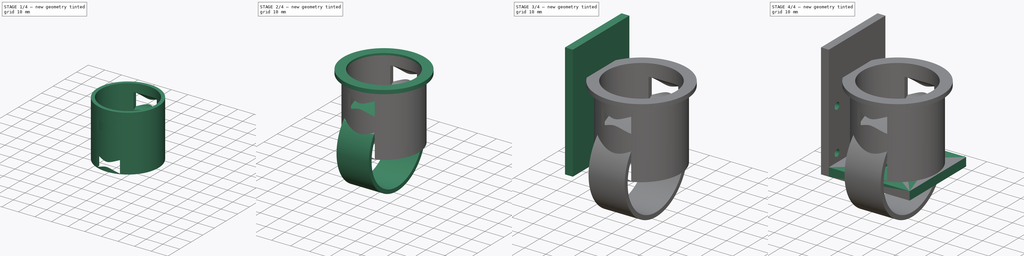
[diagram: build sequence overview — one tinted view per stage of 4, left to right]
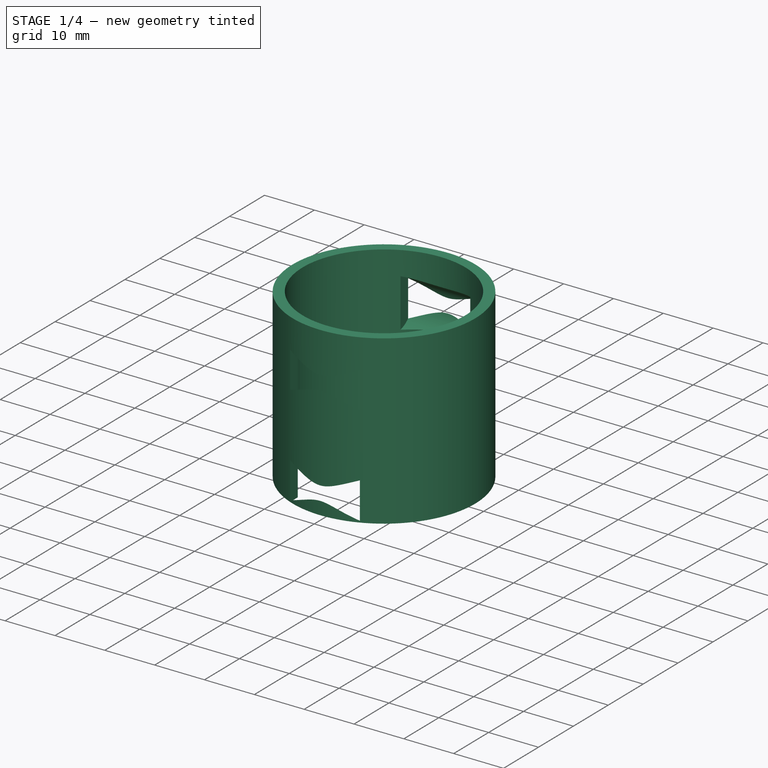
[diagram: stage 1 of 4 — iso view after this stage's code; geometry added in this stage tinted green]
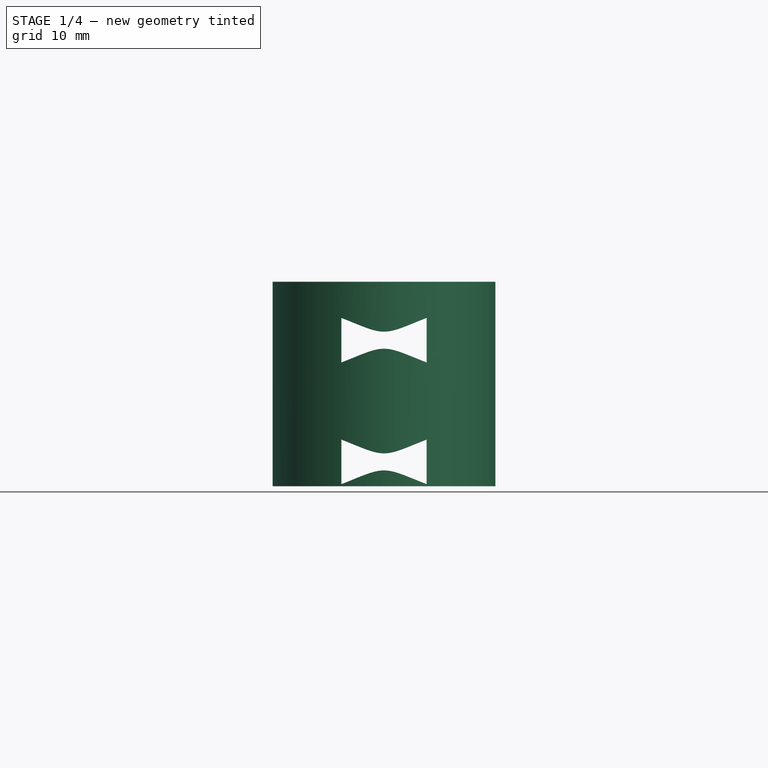
[diagram: stage 1 of 4 — front view after this stage's code; geometry added in this stage tinted green]
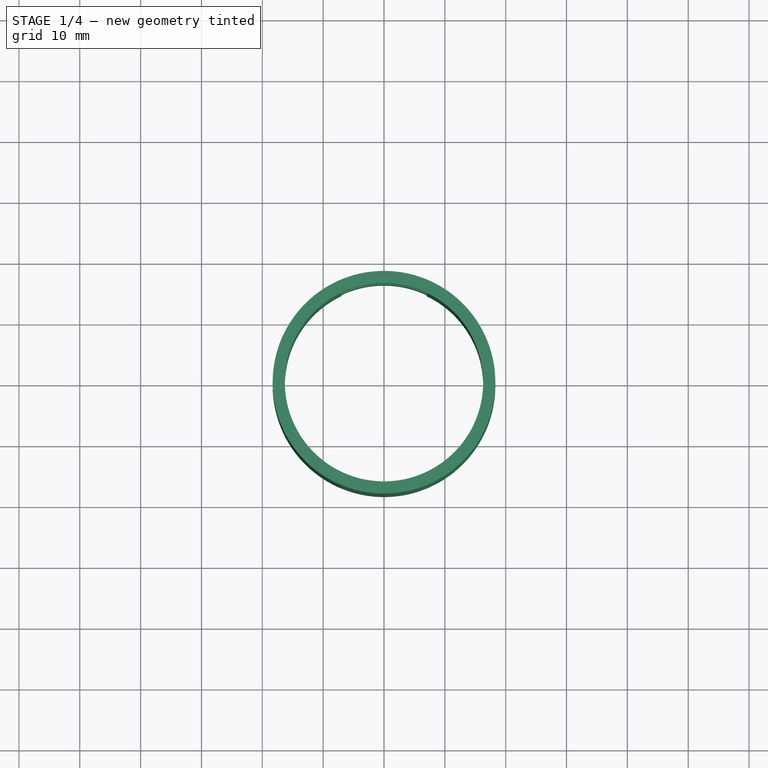
[diagram: stage 1 of 4 — top view after this stage's code; geometry added in this stage tinted green]
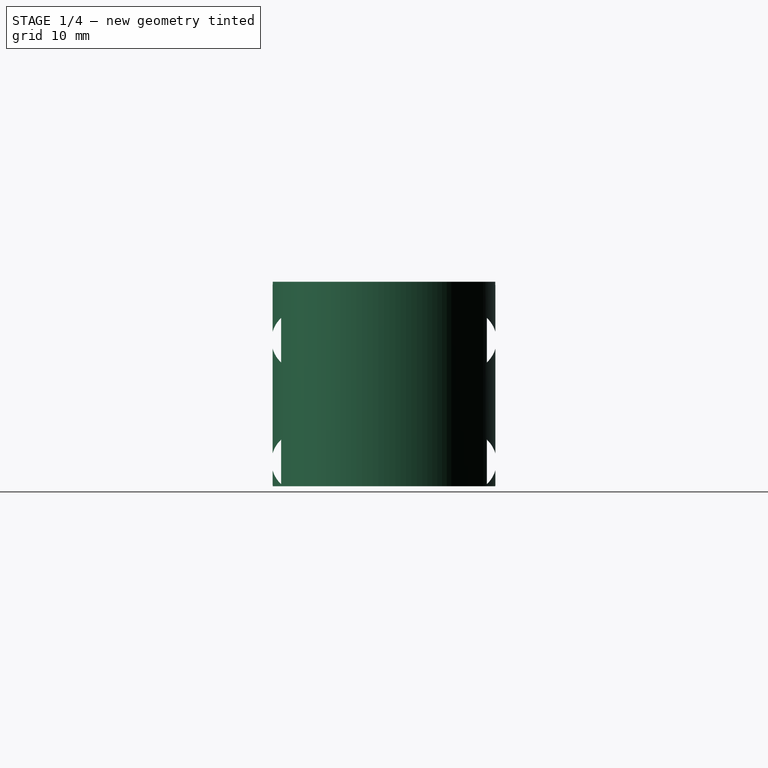
[diagram: stage 1 of 4 — right view after this stage's code; geometry added in this stage tinted green]
FCSTD DOCUMENT  (FreeCAD 0.18.4R)
Label: SoporteAngularMotor
License: All rights reserved
LicenseURL: http://en.wikipedia.org/wiki/All_rights_reserved
objects: Sketcher::SketchObject×7, PartDesign::Pad×6, PartDesign::Body×3, App::MeasureDistance×3, PartDesign::Pocket×2, PartDesign::FeatureBase×1, App::Part×1
note: 27 computed .brp shape members not serialized (recipe doc carries the construction recipe); baked Part::Feature solids carry a one-line shape summary decoded from their .brp

FEATURE [Sketcher::SketchObject] Sketch001  label="Sketch_Separador"
  MapMode = 5
  Support = -> [XY_Plane004]
  sketch-geometry (4):
    g0: LineSegment StartX=-22.7 StartY=19 StartZ=0 EndX=-19 EndY=19 EndZ=0
    g1: LineSegment StartX=-19 StartY=19 StartZ=0 EndX=-19 EndY=-19 EndZ=0
    g2: LineSegment StartX=-19 StartY=-19 StartZ=0 EndX=-22.7 EndY=-19 EndZ=0
    g3: LineSegment StartX=-22.7 StartY=-19 StartZ=0 EndX=-22.7 EndY=19 EndZ=0
  constraints (9):
    c: Coincident(g0,g1)
    c: Coincident(g1,g2)
    c: Coincident(g2,g3)
    c: Coincident(g3,g0)
    c: Horizontal(g0)
    c: Horizontal(g2)
    c: Vertical(g1)
    c: Vertical(g3)
    c: DistanceX(g2,g1) = 3.7
FEATURE [Sketcher::SketchObject] Sketch002  label="Sketch_CilindroReduccion"
  MapMode = 5
  Support = -> [XY_Plane002]
  sketch-geometry (2):
    g0: Circle CenterX=0 CenterY=0 CenterZ=0 NormalX=0 NormalY=0 NormalZ=1 AngleXU=0 Radius=16.3
    g1: Circle CenterX=0 CenterY=0 CenterZ=0 NormalX=0 NormalY=0 NormalZ=1 AngleXU=0 Radius=18.3
  constraints (4):
    c: Coincident(g0,g-1)
    c: Radius(g0) = 16.3
    c: Coincident(g1,g0)
    c: Radius(g1) = 18.3
FEATURE [PartDesign::Pad] Pad002  label="Extrusion_CilindroReduccion"
  Length = 33.6
  Length2 = 100
  Profile = -> Sketch002
  Type = 0
FEATURE [Sketcher::SketchObject] Sketch003  label="Sketch_BarrenosCilindro"
  MapMode = 5
  Placement = pos=(0,0,0) rot=(0.57735,0.57735,0.57735;2.0944rad)
  Support = -> [YZ_Plane]
  sketch-geometry (9):
    g0: LineSegment [constr] StartX=-13.5 StartY=4 StartZ=0 EndX=13.5 EndY=4 EndZ=0
    g1: Circle CenterX=13.5 CenterY=4 CenterZ=0 NormalX=0 NormalY=0 NormalZ=1 AngleXU=0 Radius=5
    g2: Circle CenterX=-13.5 CenterY=4 CenterZ=0 NormalX=0 NormalY=0 NormalZ=1 AngleXU=0 Radius=5
    g3: LineSegment [constr] StartX=-13.5 StartY=4 StartZ=0 EndX=13.5 EndY=4 EndZ=0
    g4: LineSegment [constr] StartX=13.5 StartY=4 StartZ=0 EndX=13.5 EndY=24 EndZ=0
    g5: LineSegment [constr] StartX=13.5 StartY=24 StartZ=0 EndX=-13.5 EndY=24 EndZ=0
    g6: LineSegment [constr] StartX=-13.5 StartY=24 StartZ=0 EndX=-13.5 EndY=4 EndZ=0
    g7: Circle CenterX=13.5 CenterY=24 CenterZ=0 NormalX=0 NormalY=0 NormalZ=1 AngleXU=0 Radius=5
    g8: Circle CenterX=-13.5 CenterY=24 CenterZ=0 NormalX=0 NormalY=0 NormalZ=1 AngleXU=0 Radius=5
  constraints (22):
    c: Horizontal(g0)
    c: DistanceX(g0,g0) = 27
    c: DistanceX(g-1,g0) = 13.5
    c: Coincident(g1,g0)
    c: Coincident(g2,g0)
    c: Radius(g1) = 5
    c: Equal(g1,g2)
    c: Coincident(g3,g4)
    c: Coincident(g4,g5)
    c: Coincident(g5,g6)
    c: Coincident(g6,g3)
    c: Horizontal(g5)
    c: Vertical(g4)
    c: Vertical(g6)
    c: Coincident(g3,g2)
    c: Coincident(g3,g1)
    c: DistanceY(g4,g4) = 20
    c: Coincident(g7,g4)
    c: Coincident(g8,g5)
    c: Equal(g8,g7)
    c: DistanceY(g-1,g1) = 4
    c: Equal(g7,g1)
FEATURE [PartDesign::Pocket] Pocket
  BaseFeature = -> Pad002
  Length = 14
  Length2 = 100
  Midplane = true
  Profile = -> Sketch003
  Type = 0
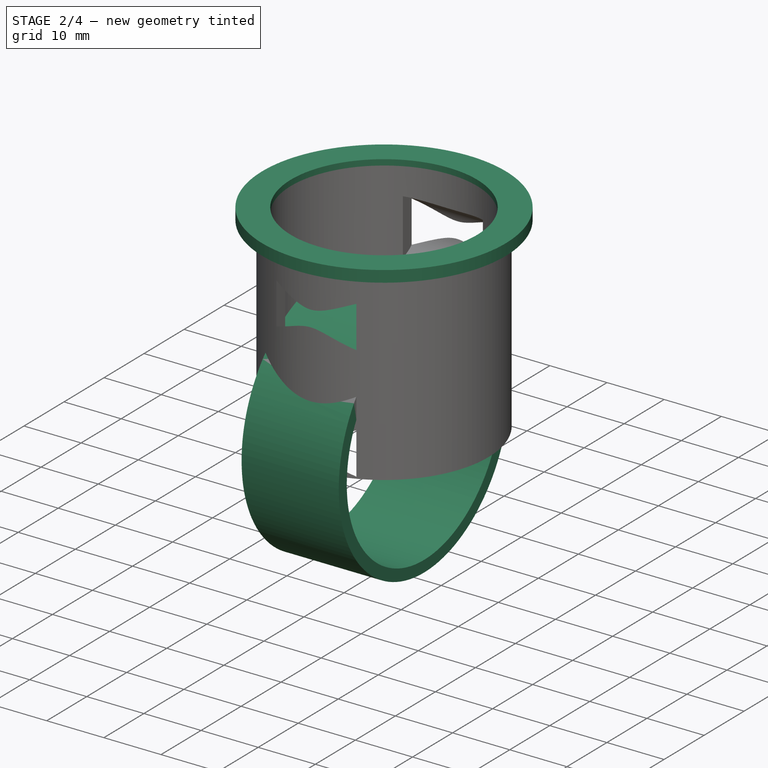
[diagram: stage 2 of 4 — iso view after this stage's code; geometry added in this stage tinted green]
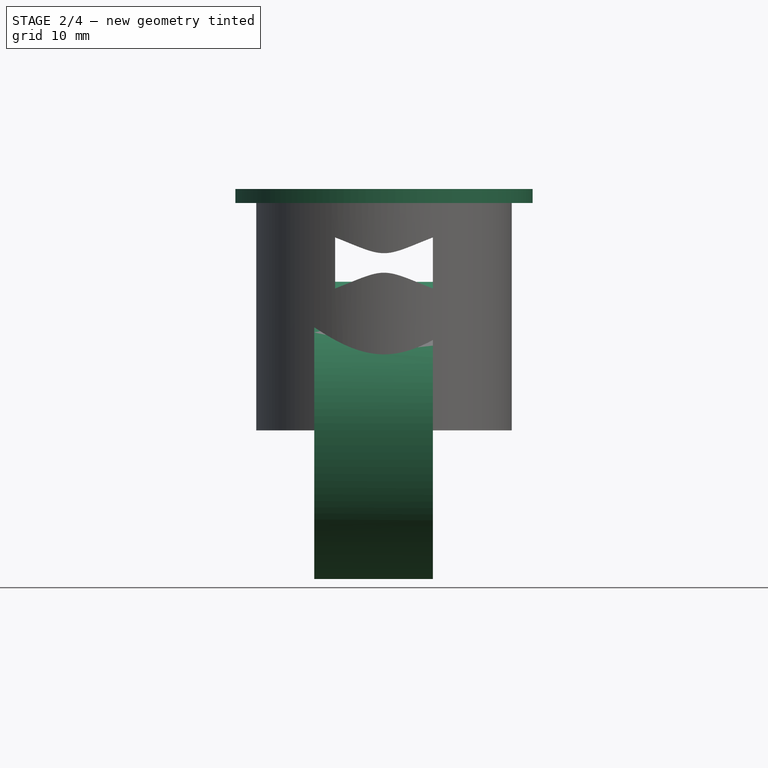
[diagram: stage 2 of 4 — front view after this stage's code; geometry added in this stage tinted green]
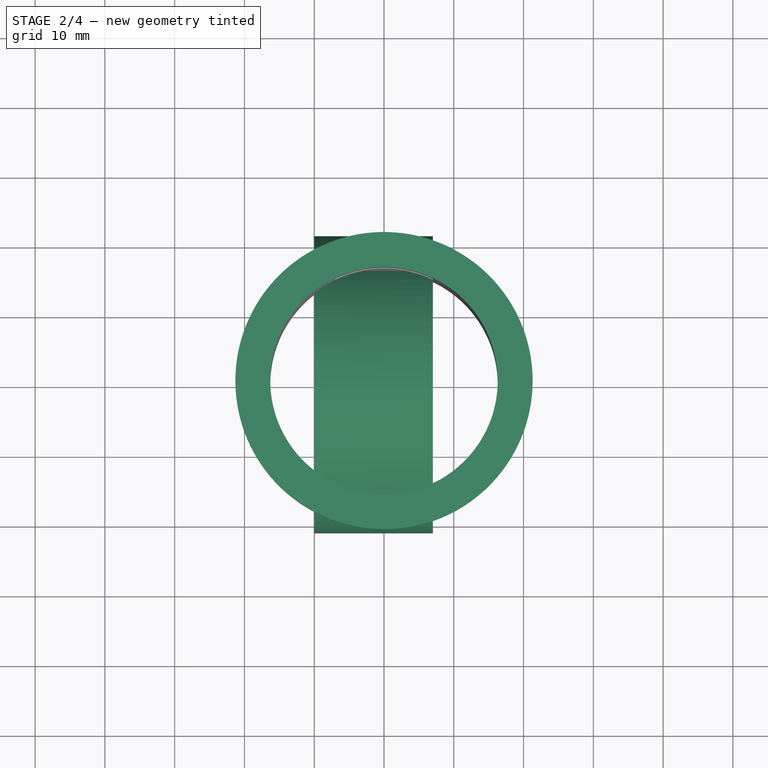
[diagram: stage 2 of 4 — top view after this stage's code; geometry added in this stage tinted green]
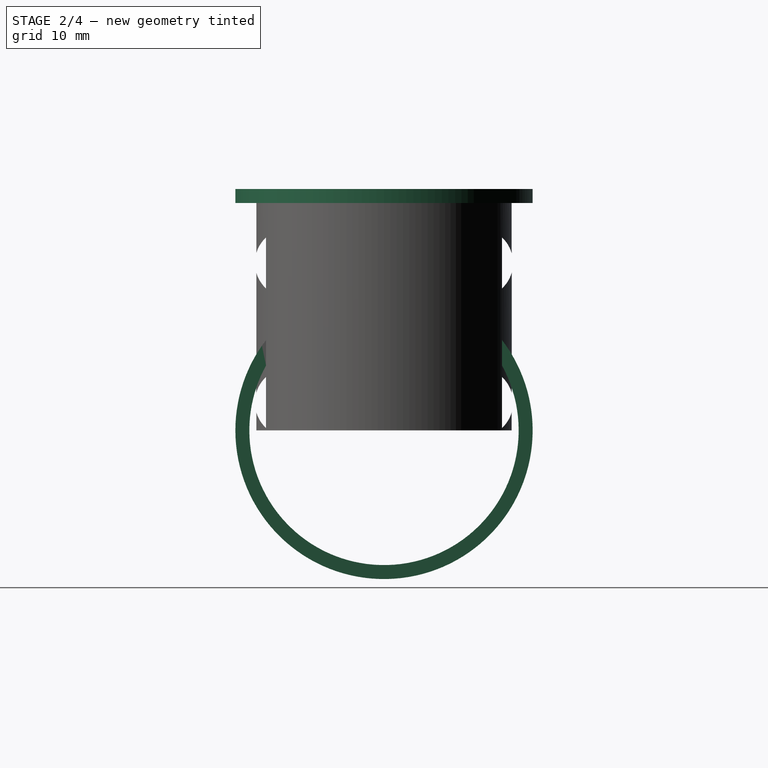
[diagram: stage 2 of 4 — right view after this stage's code; geometry added in this stage tinted green]
FEATURE [Sketcher::SketchObject] Sketch005  label="Sketch1_CilindroMotor"
  ExternalGeometry = -> [Pocket]
  MapMode = 5
  Placement = pos=(0,0,33.6) rot=(0,0,1;0rad)
  Support = -> [Pocket]
  sketch-geometry (3):
    g0: Circle CenterX=0 CenterY=0 CenterZ=0 NormalX=0 NormalY=0 NormalZ=1 AngleXU=0 Radius=16.3
    g1: Circle [constr] CenterX=0 CenterY=0 CenterZ=0 NormalX=0 NormalY=0 NormalZ=1 AngleXU=0 Radius=19.3
    g2: Circle CenterX=0 CenterY=0 CenterZ=0 NormalX=0 NormalY=0 NormalZ=1 AngleXU=0 Radius=21.3
  constraints (6):
    c: Coincident(g1,g0)
    c: Radius(g1) = 19.3
    c: Coincident(g2,g0)
    c: Radius(g2) = 21.3
    c: Equal(g-3,g0)
    c: Coincident(g0,g-1)
FEATURE [PartDesign::Pad] Pad003  label="CilindroMotor_Extrusion1"
  BaseFeature = -> Pocket
  Length = 2
  Length2 = 100
  Midplane = true
  Profile = -> Sketch005
  Type = 0
FEATURE [PartDesign::Body] Body002  label="Separador"
  Group = -> [BaseFeature,Pad001,Sketch001,Sketch004,Pad005,Pocket002]
  Origin = -> Origin004
  Tip = -> Pocket002
FEATURE [App::MeasureDistance] Distance001  label="Distance: 4.00 mm"
  Distance = 4
  P1 = (19,19,-4)
  P2 = (19,19,0)
FEATURE [App::MeasureDistance] Distance  label="Distance: 30.00 mm"
  Distance = 30.0011
  P1 = (-19.2527,-19,30)
  P2 = (-19,-19,0)
FEATURE [Sketcher::SketchObject] Sketch006  label="Sketch2_CilindroMotor"
  ExternalGeometry = -> [Pad003]
  MapMode = 5
  Placement = pos=(7,-1.6e-15,1.6e-15) rot=(-0.57735,0.57735,0.57735;4.18879rad)
  Support = -> [Pad003]
  sketch-geometry (2):
    g0: Circle CenterX=0 CenterY=0 CenterZ=0 NormalX=0 NormalY=0 NormalZ=1 AngleXU=0 Radius=19.3
    g1: Circle CenterX=0 CenterY=0 CenterZ=0 NormalX=0 NormalY=0 NormalZ=1 AngleXU=0 Radius=21.3
  constraints (3):
    c: Coincident(g0,g-1)
    c: Coincident(g1,g0)
    c: Radius(g0) = 19.3
FEATURE [PartDesign::Pad] Pad006  label="CilindroMotor_Extrusion2"
  BaseFeature = -> Pad003
  Length = 17
  Length2 = 100
  Profile = -> Sketch006
  Type = 0
FEATURE [PartDesign::Body] Body001  label="CilindroReduccion"
  Group = -> [Sketch002,Pad002,Sketch003,Pocket,Sketch005,Pad003,Sketch006,Pad006]
  Origin = -> Origin002
  Tip = -> Pad006
FEATURE [App::Part] Part  label="SoporteAngularMotor_v2"
  Group = -> [Body001,Body,Body002]
  Origin = -> Origin
FEATURE [App::MeasureDistance] Distance002  label="Distance: 4.48 mm"
  Distance = 4.47664
  P1 = (6.5705,-9.99032,-4)
  P2 = (9.09288,-6.29195,-4)
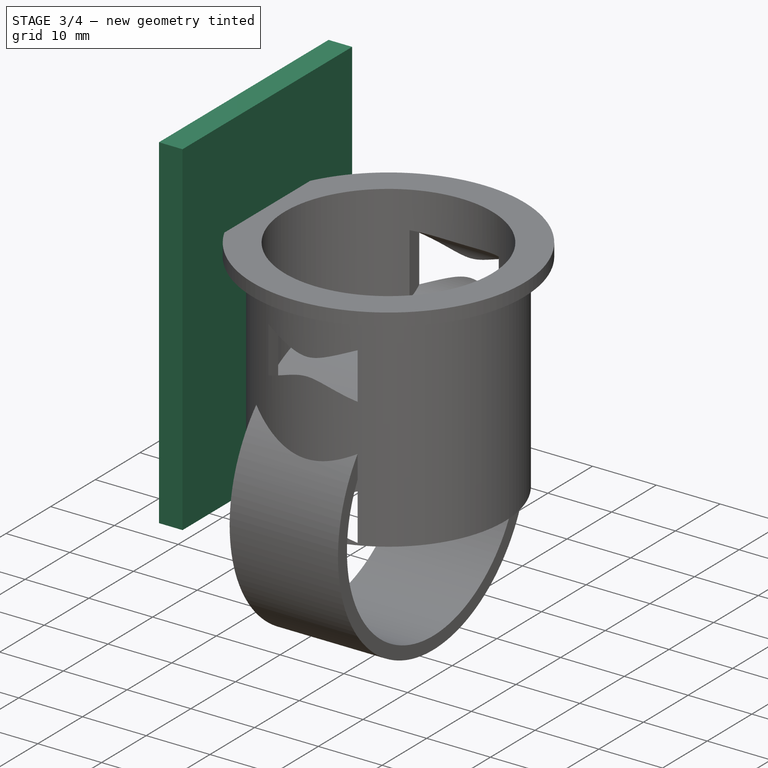
[diagram: stage 3 of 4 — iso view after this stage's code; geometry added in this stage tinted green]
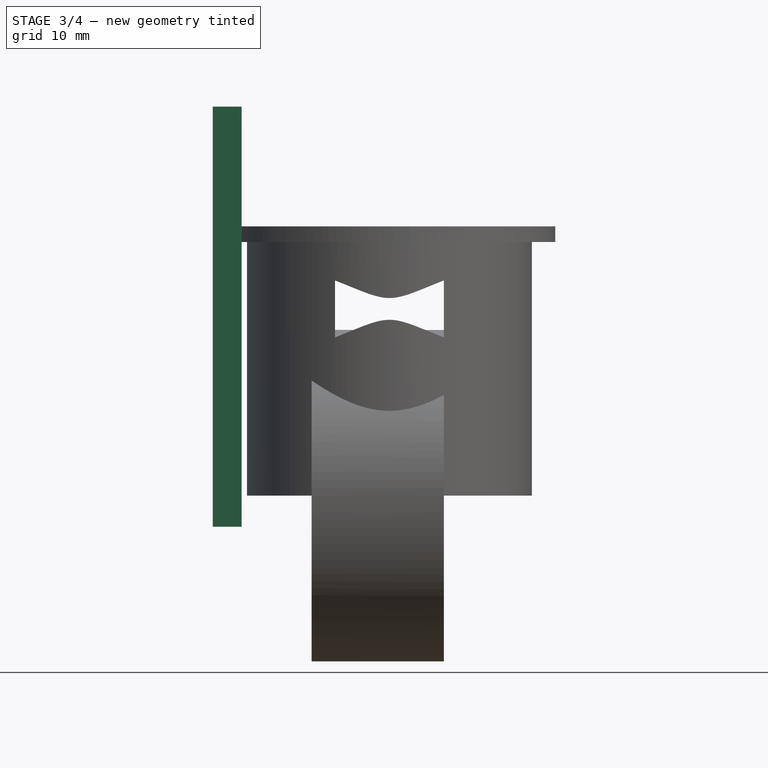
[diagram: stage 3 of 4 — front view after this stage's code; geometry added in this stage tinted green]
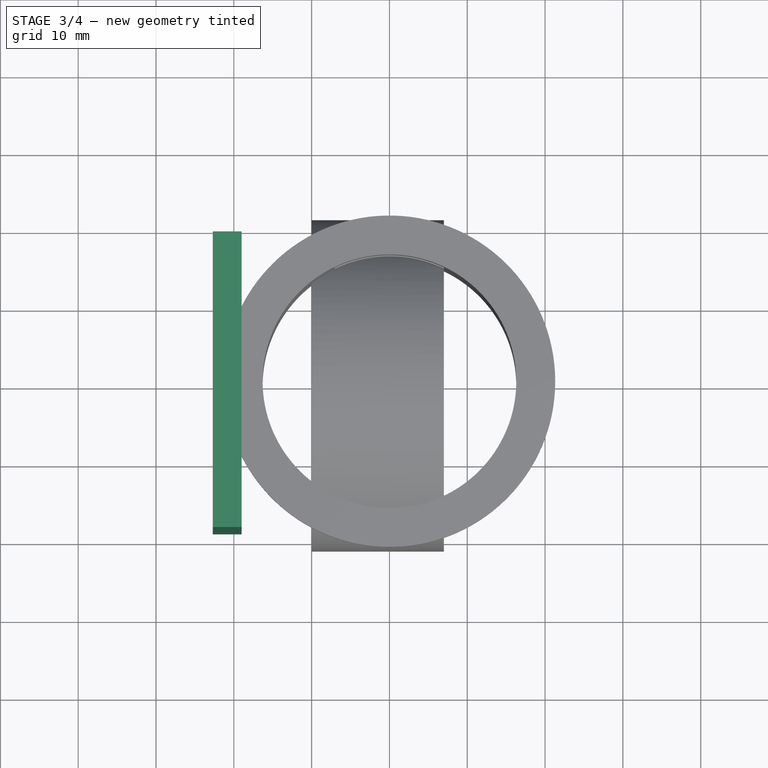
[diagram: stage 3 of 4 — top view after this stage's code; geometry added in this stage tinted green]
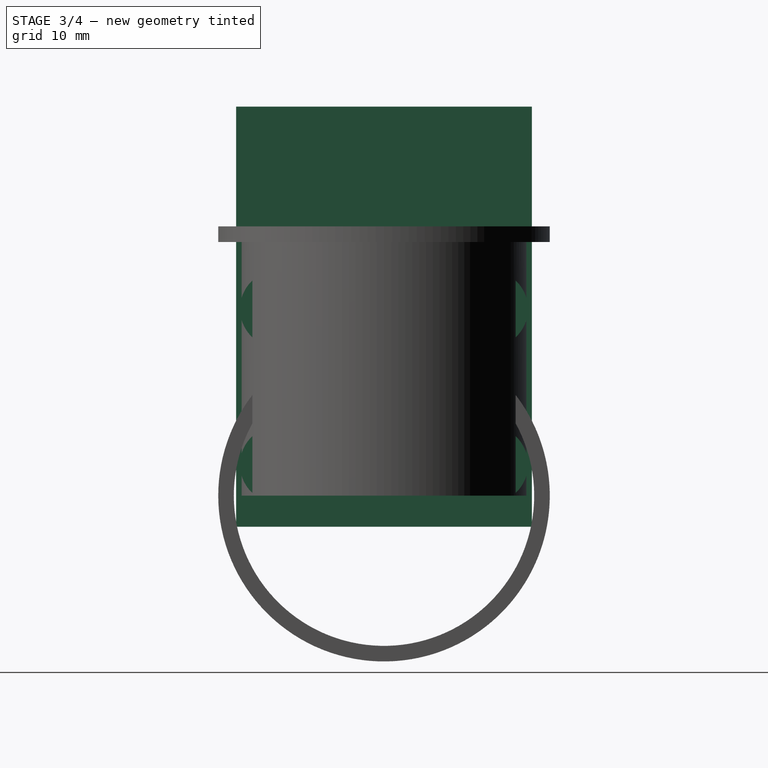
[diagram: stage 3 of 4 — right view after this stage's code; geometry added in this stage tinted green]
FEATURE [PartDesign::Body] Body  label="CaraTornillos"
  Group = -> [Pad,Sketch]
  Origin = -> Origin003
  Tip = -> Pad
FEATURE [PartDesign::FeatureBase] BaseFeature
FEATURE [PartDesign::Pad] Pad001  label="Extrusion_Separador_1"
  BaseFeature = -> BaseFeature
  Length = 50
  Length2 = 100
  Profile = -> Sketch001
  Type = 0
FEATURE [Sketcher::SketchObject] Sketch004  label="Sketch_Separador_Barrenos"
  MapMode = 5
  Placement = pos=(-19,0,0) rot=(0.57735,0.57735,0.57735;2.0944rad)
  Support = -> [Pad001]
  sketch-geometry (9):
    g0: LineSegment [constr] StartX=-13.5 StartY=4 StartZ=0 EndX=13.5 EndY=4 EndZ=0
    g1: Circle CenterX=13.5 CenterY=4 CenterZ=0 NormalX=0 NormalY=0 NormalZ=1 AngleXU=0 Radius=1.6
    g2: Circle CenterX=-13.5 CenterY=4 CenterZ=0 NormalX=0 NormalY=0 NormalZ=1 AngleXU=0 Radius=1.6
    g3: LineSegment [constr] StartX=-13.5 StartY=4 StartZ=0 EndX=13.5 EndY=4 EndZ=0
    g4: LineSegment [constr] StartX=13.5 StartY=4 StartZ=0 EndX=13.5 EndY=24 EndZ=0
    g5: LineSegment [constr] StartX=13.5 StartY=24 StartZ=0 EndX=-13.5 EndY=24 EndZ=0
    g6: LineSegment [constr] StartX=-13.5 StartY=24 StartZ=0 EndX=-13.5 EndY=4 EndZ=0
    g7: Circle CenterX=-13.5 CenterY=24 CenterZ=0 NormalX=0 NormalY=0 NormalZ=1 AngleXU=0 Radius=1.6
    g8: Circle CenterX=13.5 CenterY=24 CenterZ=0 NormalX=0 NormalY=0 NormalZ=1 AngleXU=0 Radius=1.6
  constraints (22):
    c: Horizontal(g0)
    c: DistanceX(g0,g0) = 27
    c: DistanceX(g-1,g0) = 13.5
    c: DistanceY(g-1,g0) = 4
    c: Coincident(g1,g0)
    c: Coincident(g2,g0)
    c: Radius(g1) = 1.6
    c: Equal(g1,g2)
    c: Coincident(g3,g4)
    c: Coincident(g4,g5)
    c: Coincident(g5,g6)
    c: Coincident(g6,g3)
    c: Horizontal(g5)
    c: Vertical(g4)
    c: Vertical(g6)
    c: Coincident(g3,g2)
    c: Coincident(g3,g1)
    c: DistanceY(g4,g4) = 20
    c: Coincident(g7,g5)
    c: Coincident(g8,g4)
    c: Equal(g8,g7)
    c: Equal(g7,g1)
FEATURE [PartDesign::Pad] Pad005  label="ExtrusionSeparador_2"
  BaseFeature = -> Pad001
  Length = 4
  Length2 = 100
  Profile = -> Sketch001
  Reversed = true
  Type = 0
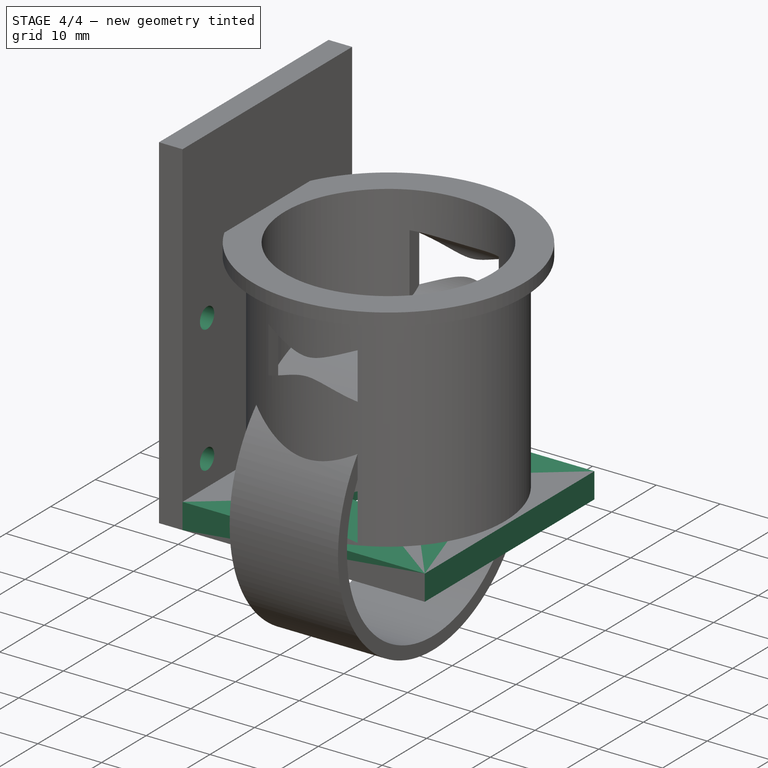
[diagram: stage 4 of 4 — iso view after this stage's code; geometry added in this stage tinted green]
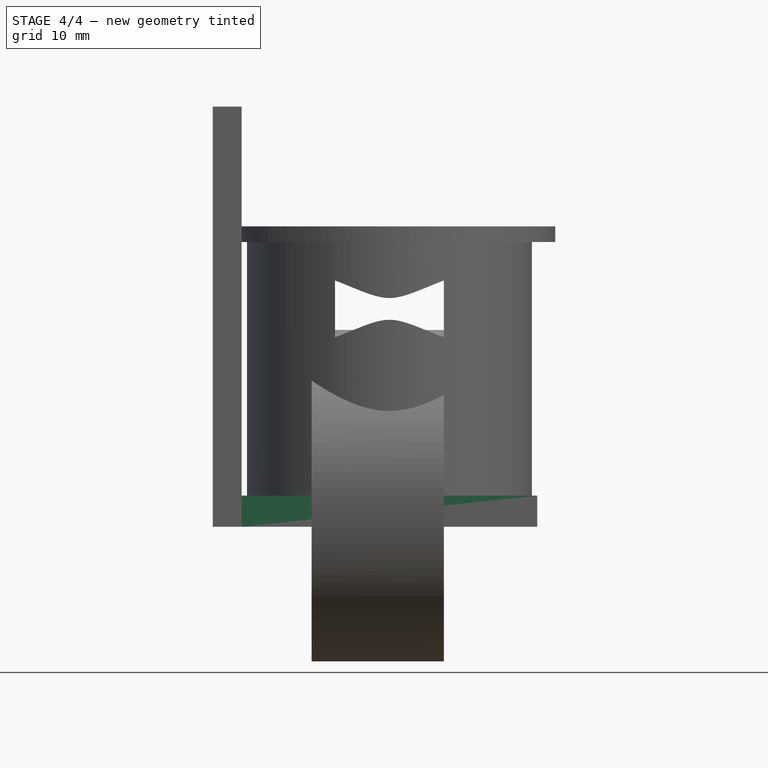
[diagram: stage 4 of 4 — front view after this stage's code; geometry added in this stage tinted green]
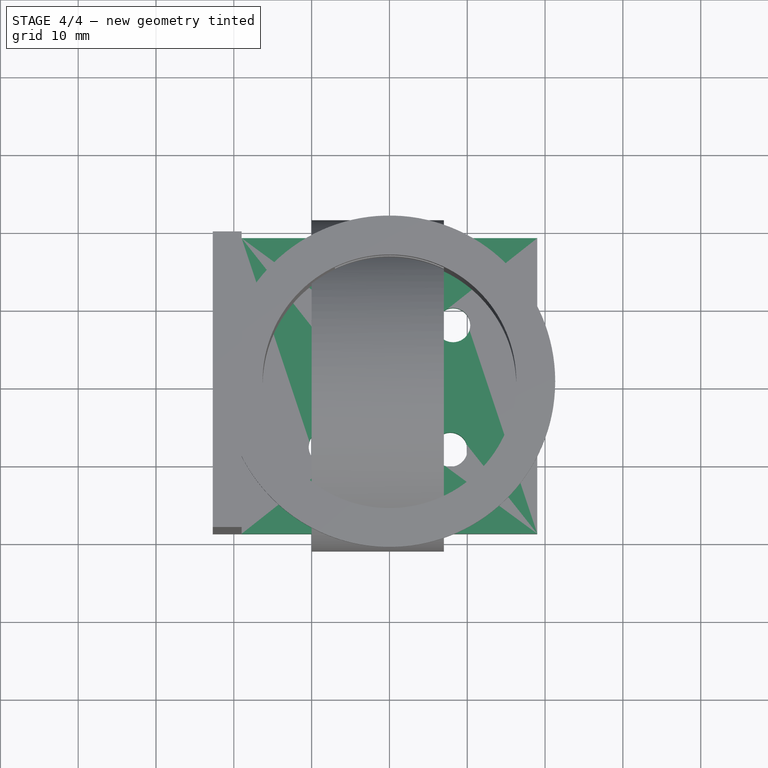
[diagram: stage 4 of 4 — top view after this stage's code; geometry added in this stage tinted green]
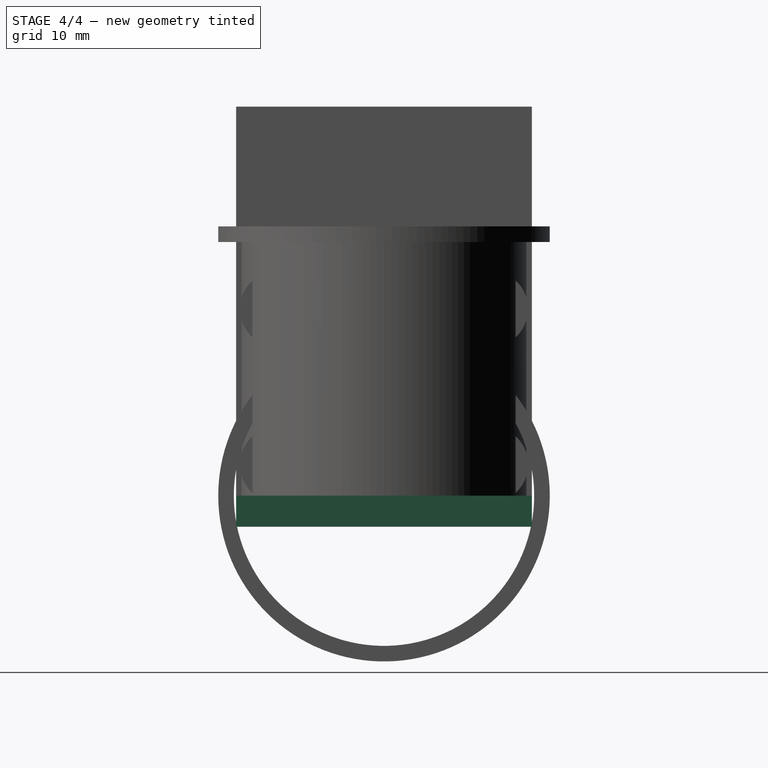
[diagram: stage 4 of 4 — right view after this stage's code; geometry added in this stage tinted green]
FEATURE [Sketcher::SketchObject] Sketch  label="Sketch_CaraTornillos"
  MapMode = 5
  sketch-geometry (16):
    g0: Circle CenterX=0 CenterY=0 CenterZ=0 NormalX=0 NormalY=0 NormalZ=1 AngleXU=0 Radius=6
    g1: LineSegment [constr] StartX=8.17976 StartY=7.82024 StartZ=0 EndX=-7.82024 EndY=8.17976 EndZ=0
    g2: LineSegment [constr] StartX=-7.82024 StartY=8.17976 StartZ=0 EndX=-8.17976 EndY=-7.82024 EndZ=0
    g3: LineSegment [constr] StartX=-8.17976 StartY=-7.82024 StartZ=0 EndX=7.82024 EndY=-8.17976 EndZ=0
    g4: LineSegment [constr] StartX=7.82024 StartY=-8.17976 StartZ=0 EndX=8.17976 EndY=7.82024 EndZ=0
    g5: Circle [constr] CenterX=0 CenterY=0 CenterZ=0 NormalX=0 NormalY=0 NormalZ=1 AngleXU=0 Radius=11.3166
    g6: Circle CenterX=8.17976 CenterY=7.82024 CenterZ=0 NormalX=0 NormalY=0 NormalZ=1 AngleXU=0 Radius=2.2
    g7: Circle CenterX=7.82024 CenterY=-8.17976 CenterZ=0 NormalX=0 NormalY=0 NormalZ=1 AngleXU=0 Radius=2.2
    g8: Circle CenterX=-7.82024 CenterY=8.17976 CenterZ=0 NormalX=0 NormalY=0 NormalZ=1 AngleXU=0 Radius=2.2
    g9: Circle CenterX=-8.17976 CenterY=-7.82024 CenterZ=0 NormalX=0 NormalY=0 NormalZ=1 AngleXU=0 Radius=2.2
    g10: LineSegment StartX=19 StartY=-19 StartZ=0 EndX=19 EndY=19 EndZ=0
    g11: LineSegment StartX=19 StartY=19 StartZ=0 EndX=-19 EndY=19 EndZ=0
    g12: LineSegment StartX=-19 StartY=19 StartZ=0 EndX=-19 EndY=-19 EndZ=0
    g13: LineSegment StartX=-19 StartY=-19 StartZ=0 EndX=19 EndY=-19 EndZ=0
    g14: Circle [constr] CenterX=0 CenterY=0 CenterZ=0 NormalX=0 NormalY=0 NormalZ=1 AngleXU=0 Radius=26.8701
    g15: Circle [constr] CenterX=0 CenterY=0 CenterZ=0 NormalX=0 NormalY=0 NormalZ=1 AngleXU=0 Radius=16
  constraints (39):
    c: Coincident(g0,g-1)
    c: Radius(g0) = 6
    c: Coincident(g1,g2)
    c: Coincident(g2,g3)
    c: Coincident(g3,g4)
    c: Coincident(g4,g1)
    c: Equal(g1,g2)
    c: Equal(g1,g3)
    c: Equal(g1,g4)
    c: PointOnObject(g1,g5)
    c: PointOnObject(g2,g5)
    c: PointOnObject(g3,g5)
    c: PointOnObject(g4,g5)
    c: Coincident(g5,g0)
    c: DistanceX(g1,g1) = 16
    c: Coincident(g6,g1)
    c: Coincident(g7,g3)
    c: Coincident(g8,g1)
    c: Coincident(g9,g2)
    c: Radius(g6) = 2.2
    c: Equal(g6,g8)
    c: Equal(g8,g9)
    c: Equal(g9,g7)
    c: Coincident(g10,g11)
    c: Coincident(g11,g12)
    c: Coincident(g12,g13)
    c: Coincident(g13,g10)
    c: Equal(g10,g11)
    c: Equal(g10,g12)
    c: Equal(g10,g13)
    c: PointOnObject(g10,g14)
    c: PointOnObject(g11,g14)
    c: PointOnObject(g12,g14)
    c: PointOnObject(g13,g14)
    c: Coincident(g14,g0)
    c: Vertical(g12)
    c: DistanceY(g0,g11) = 19
    c: Coincident(g15,g0)
    c: Radius(g15) = 16
FEATURE [PartDesign::Pad] Pad  label="Extrusion_CaraTornillos"
  Length = 4
  Length2 = 100
  Profile = -> Sketch
  Reversed = true
  Type = 0
FEATURE [PartDesign::Pocket] Pocket002  label="Separador_Barrenos001"
  BaseFeature = -> Pad005
  Length = 5
  Length2 = 100
  Profile = -> Sketch004
  Type = 1
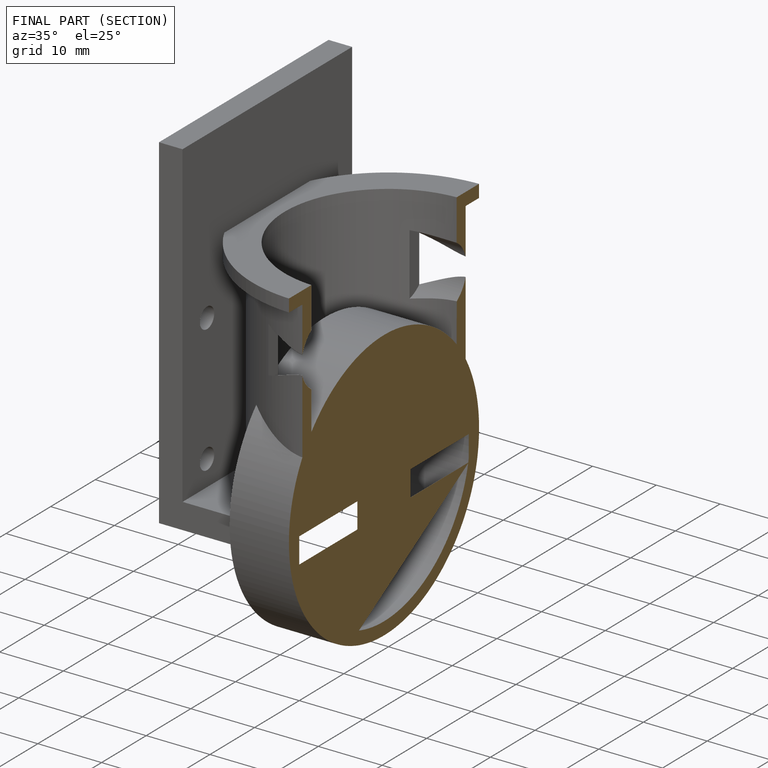
[diagram: finished part — half-section view (interior)]
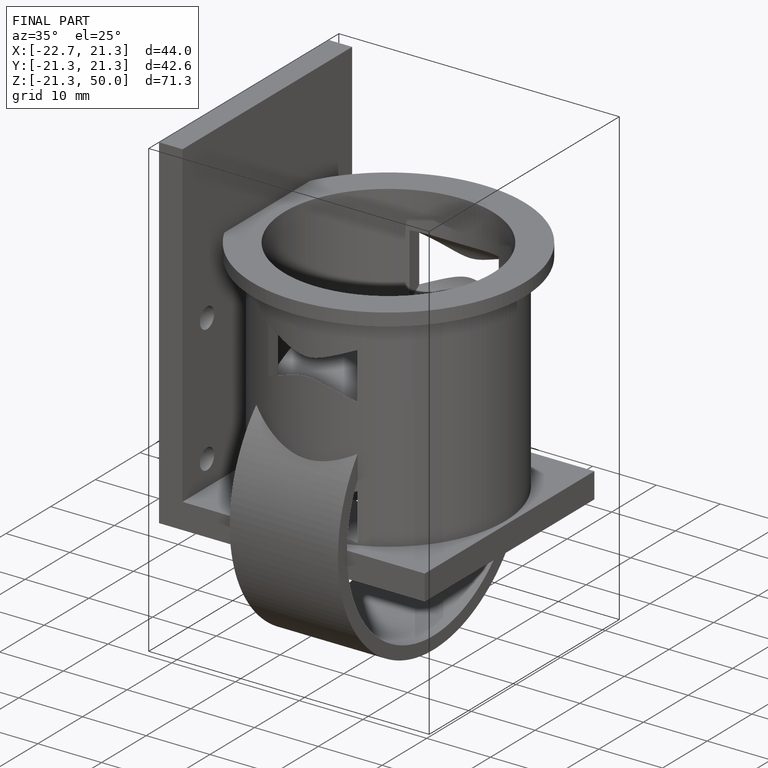
[diagram: finished part — iso view with bounding-box wireframe]
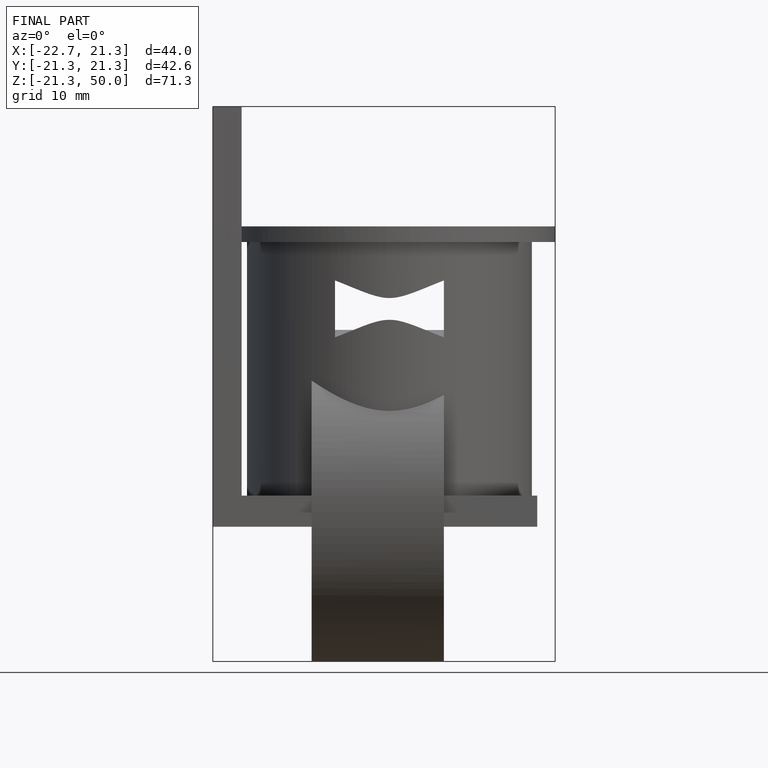
[diagram: finished part — front view with bounding-box wireframe]
